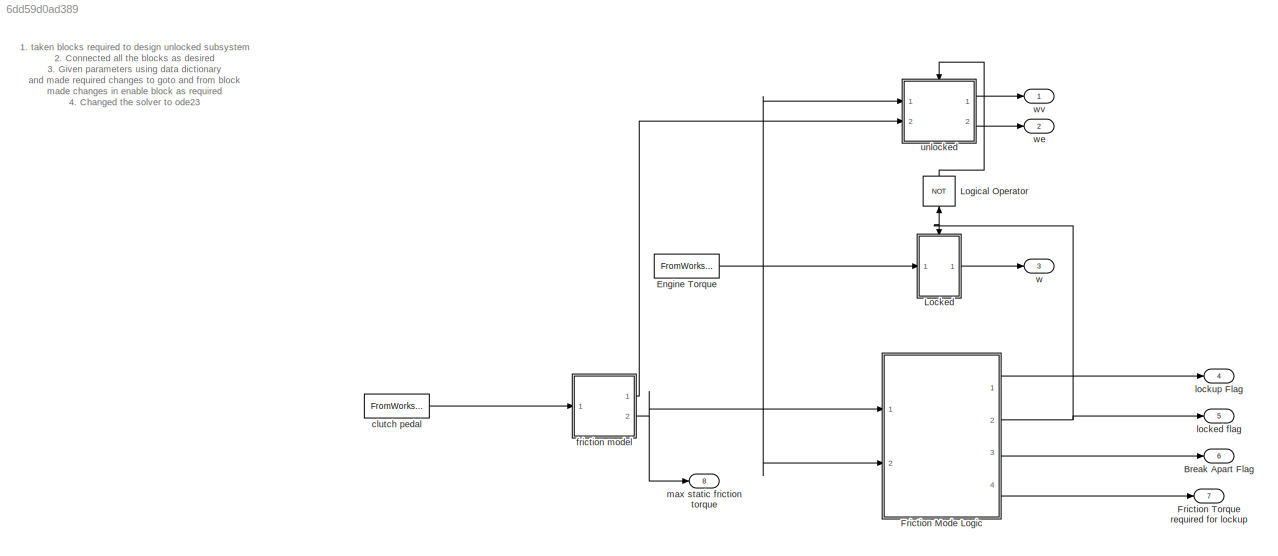
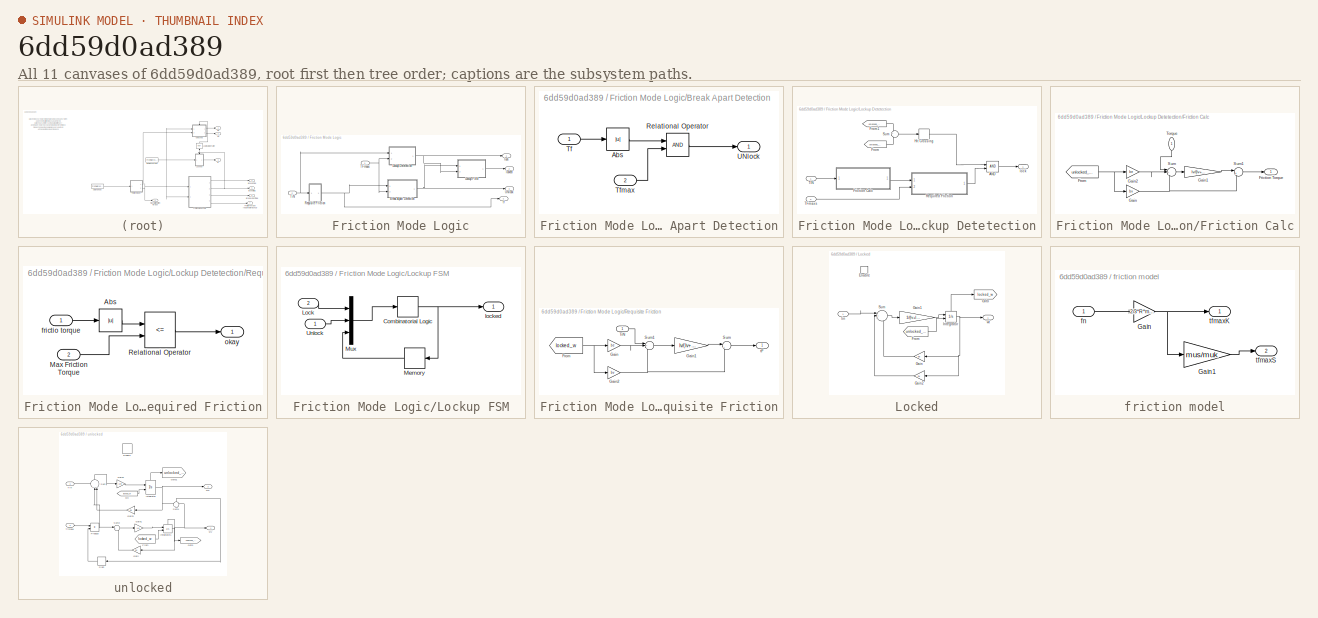
[diagram: thumbnail index - all 11 canvases of the model, root first then tree order]
MODEL slx_6dd59d0ad389
KIND model
CONFIG AbsTol = auto
CONFIG EnableMultiTasking = off
CONFIG FixedStep = auto
CONFIG MaxStep = auto
CONFIG MinStep = auto
CONFIG PostLoadFcn = Fn=[0 0;1 0.8;2 1.6;3 1.6;4 1.6;5 1.6;6 0.8;7 0;8 0;9 0;10 0];\nle=1;\nlv=5;\nR=1;\nbe=2;\nbv=1;\nmuk=1;\nmus=1.5;\nTin=[1 2;2 2;3 2;4 2;5 2;6 0;7 0;8 0;9 0;10 0];\nf1=[1;6;11;16;21;26;31;36;41;46;51];
CONFIG RelTol = 1e-3
CONFIG SampleTimeConstraint = Unconstrained
CONFIG Solver = ode23
CONFIG SolverName = ode23
CONFIG StartTime = 0.0
CONFIG StopTime = 10.0
BLOCK [Outport] Break Apart Flag
  Port = 6
BLOCK [FromWorkspace] Engine Torque
  VariableName = Tin
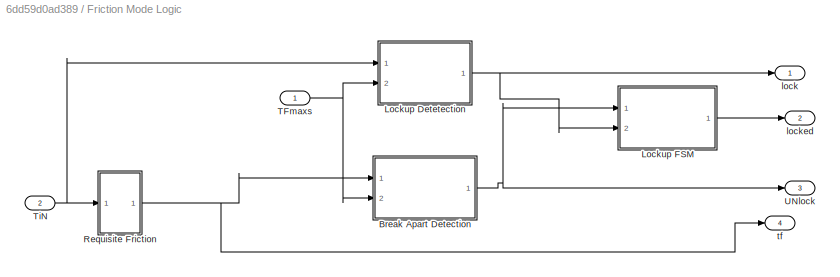
BLOCK [SubSystem] Friction Mode Logic
  Ports = [2, 4]
  RequestExecContextInheritance = off
BLOCK [SubSystem] Friction Mode Logic/Break Apart Detection
  Ports = [2, 1]
  RequestExecContextInheritance = off
BLOCK [Abs] Friction Mode Logic/Break Apart Detection/Abs
  SaturateOnIntegerOverflow = off
BLOCK [RelationalOperator] Friction Mode Logic/Break Apart Detection/Relational Operator
  InputSameDT = off
  OutDataTypeStr = boolean
  Ports = [2, 1]
  RndMeth = Simplest
BLOCK [Inport] Friction Mode Logic/Break Apart Detection/Tf
BLOCK [Inport] Friction Mode Logic/Break Apart Detection/Tfmax
  Port = 2
BLOCK [Outport] Friction Mode Logic/Break Apart Detection/UNlock
BLOCK [SubSystem] Friction Mode Logic/Lockup Detetection
  Ports = [2, 1]
  RequestExecContextInheritance = off
BLOCK [Logic] Friction Mode Logic/Lockup Detetection/AND
  AllPortsSameDT = off
  IconShape = distinctive
  OutDataTypeStr = boolean
  Ports = [2, 1]
BLOCK [SubSystem] Friction Mode Logic/Lockup Detetection/Friction Calc
  Ports = [1, 1]
  RequestExecContextInheritance = off
BLOCK [Outport] Friction Mode Logic/Lockup Detetection/Friction Calc/Friction Torque
BLOCK [From] Friction Mode Logic/Lockup Detetection/Friction Calc/From
  GotoTag = unlocked_we
  TagVisibility = global
BLOCK [Gain] Friction Mode Logic/Lockup Detetection/Friction Calc/Gain
  Gain = bv
BLOCK [Gain] Friction Mode Logic/Lockup Detetection/Friction Calc/Gain1
  Gain = lv/(lv+le)
BLOCK [Gain] Friction Mode Logic/Lockup Detetection/Friction Calc/Gain2
  Gain = be
BLOCK [Sum] Friction Mode Logic/Lockup Detetection/Friction Calc/Sum
  Inputs = |+--
  Ports = [3, 1]
BLOCK [Sum] Friction Mode Logic/Lockup Detetection/Friction Calc/Sum1
  Inputs = |++
  Ports = [2, 1]
BLOCK [Inport] Friction Mode Logic/Lockup Detetection/Friction Calc/Torque
  NameLocation = left
BLOCK [From] Friction Mode Logic/Lockup Detetection/From
  GotoTag = unlocked_wv
  TagVisibility = global
BLOCK [From] Friction Mode Logic/Lockup Detetection/From1
  GotoTag = unlocked_we
  TagVisibility = global
BLOCK [HitCross] Friction Mode Logic/Lockup Detetection/Hit Crossing
  Ports = [1, 1]
BLOCK [SubSystem] Friction Mode Logic/Lockup Detetection/Required Friction
  Ports = [2, 1]
  RequestExecContextInheritance = off
BLOCK [Abs] Friction Mode Logic/Lockup Detetection/Required Friction/Abs
  SaturateOnIntegerOverflow = off
BLOCK [Inport] Friction Mode Logic/Lockup Detetection/Required Friction/Max Friction Torque
  Port = 2
BLOCK [RelationalOperator] Friction Mode Logic/Lockup Detetection/Required Friction/Relational Operator
  InputSameDT = off
  Operator = <=
  OutDataTypeStr = boolean
  Ports = [2, 1]
  RndMeth = Simplest
BLOCK [Inport] Friction Mode Logic/Lockup Detetection/Required Friction/frictio torque
BLOCK [Outport] Friction Mode Logic/Lockup Detetection/Required Friction/okay
BLOCK [Sum] Friction Mode Logic/Lockup Detetection/Sum
  Inputs = +-
  Ports = [2, 1]
BLOCK [Inport] Friction Mode Logic/Lockup Detetection/TFmaxs
  Port = 2
BLOCK [Inport] Friction Mode Logic/Lockup Detetection/TIN
BLOCK [Outport] Friction Mode Logic/Lockup Detetection/lock
BLOCK [SubSystem] Friction Mode Logic/Lockup FSM
  Ports = [2, 1]
  RequestExecContextInheritance = off
BLOCK [CombinatorialLogic] Friction Mode Logic/Lockup FSM/Combinatorial Logic
  TruthTable = [0;1;0;0;1;1;1;0]
BLOCK [Inport] Friction Mode Logic/Lockup FSM/Lock
  Port = 2
BLOCK [Memory] Friction Mode Logic/Lockup FSM/Memory
  NameLocation = top
BLOCK [Mux] Friction Mode Logic/Lockup FSM/Mux
  DisplayOption = bar
  Inputs = 3
  Ports = [3, 1]
BLOCK [Inport] Friction Mode Logic/Lockup FSM/Unlock
BLOCK [Outport] Friction Mode Logic/Lockup FSM/locked
BLOCK [SubSystem] Friction Mode Logic/Requisite Friction
  Ports = [1, 1]
  RequestExecContextInheritance = off
BLOCK [From] Friction Mode Logic/Requisite Friction/From
  GotoTag = locked_w
  TagVisibility = global
BLOCK [Gain] Friction Mode Logic/Requisite Friction/Gain
  Gain = be
BLOCK [Gain] Friction Mode Logic/Requisite Friction/Gain1
  Gain = lv/(lv+le)
BLOCK [Gain] Friction Mode Logic/Requisite Friction/Gain2
  Gain = bv
BLOCK [Sum] Friction Mode Logic/Requisite Friction/Sum
  Inputs = |++
  Ports = [2, 1]
BLOCK [Sum] Friction Mode Logic/Requisite Friction/Sum1
  Inputs = |+--
  Ports = [3, 1]
BLOCK [Inport] Friction Mode Logic/Requisite Friction/TiN
BLOCK [Outport] Friction Mode Logic/Requisite Friction/tF
BLOCK [Inport] Friction Mode Logic/TFmaxs
BLOCK [Inport] Friction Mode Logic/TiN
  Port = 2
BLOCK [Outport] Friction Mode Logic/UNlock
  Port = 3
BLOCK [Outport] Friction Mode Logic/lock
BLOCK [Outport] Friction Mode Logic/locked
  Port = 2
BLOCK [Outport] Friction Mode Logic/tf
  Port = 4
BLOCK [Outport] Friction Torque required for lockup
  Port = 7
BLOCK [SubSystem] Locked
  Ports = [1, 1, 1]
  RequestExecContextInheritance = off
BLOCK [EnablePort] Locked/Enable
  Ports = []
  StatesWhenEnabling = reset
BLOCK [From] Locked/From
  GotoTag = unlocked_we
  TagVisibility = global
BLOCK [Gain] Locked/Gain
  Gain = be
  NameLocation = top
BLOCK [Gain] Locked/Gain1
  Gain = 1/(lv+le)
BLOCK [Gain] Locked/Gain2
  Gain = bv
  NameLocation = top
BLOCK [Goto] Locked/Goto
  GotoTag = locked_w
  TagVisibility = global
BLOCK [Integrator] Locked/Integrator
  InitialConditionSource = external
  Ports = [2, 1, 0, 0, 1]
  ShowStatePort = on
BLOCK [Sum] Locked/Sum
  Inputs = |+--
  Ports = [3, 1]
BLOCK [Inport] Locked/tin
BLOCK [Outport] Locked/wt
BLOCK [Logic] Logical Operator
  AllPortsSameDT = off
  NameLocation = right
  Operator = NOT
  OutDataTypeStr = boolean
  Ports = [1, 1]
BLOCK [FromWorkspace] clutch pedal
  VariableName = Fn
BLOCK [SubSystem] friction model
  Ports = [1, 2]
  RequestExecContextInheritance = off
BLOCK [Gain] friction model/Gain
  Gain = 2/3*R*muk
BLOCK [Gain] friction model/Gain1
  Gain = mus/muk
BLOCK [Inport] friction model/fn
BLOCK [Outport] friction model/tfmaxK
BLOCK [Outport] friction model/tfmaxS
  Port = 2
BLOCK [Outport] locked flag
  Port = 5
BLOCK [Outport] lockup Flag
  Port = 4
BLOCK [Outport] max static friction torque
  Port = 8
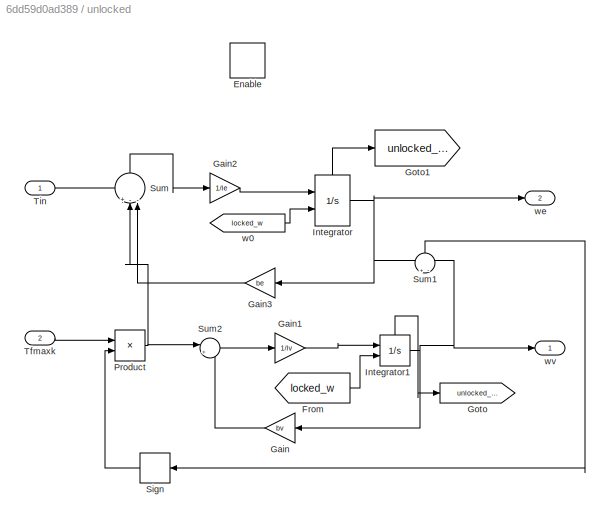
BLOCK [SubSystem] unlocked
  Ports = [2, 2, 1]
  RequestExecContextInheritance = off
BLOCK [EnablePort] unlocked/Enable
  Ports = []
  StatesWhenEnabling = reset
BLOCK [From] unlocked/From
  GotoTag = locked_w
  TagVisibility = global
BLOCK [Gain] unlocked/Gain
  Gain = bv
  NameLocation = top
BLOCK [Gain] unlocked/Gain1
  Gain = 1/lv
BLOCK [Gain] unlocked/Gain2
  Gain = 1/le
BLOCK [Gain] unlocked/Gain3
  Gain = be
  NameLocation = top
BLOCK [Goto] unlocked/Goto
  GotoTag = unlocked_wv
  TagVisibility = global
BLOCK [Goto] unlocked/Goto1
  GotoTag = unlocked_we
  TagVisibility = global
BLOCK [Integrator] unlocked/Integrator
  InitialConditionSource = external
  Ports = [2, 1, 0, 0, 1]
  ShowStatePort = on
BLOCK [Integrator] unlocked/Integrator1
  InitialConditionSource = external
  Ports = [2, 1, 0, 0, 1]
  ShowStatePort = on
BLOCK [Product] unlocked/Product
  Ports = [2, 1]
BLOCK [Signum] unlocked/Sign
  NameLocation = top
BLOCK [Sum] unlocked/Sum
  Inputs = +--
  NameLocation = right
  Ports = [3, 1]
BLOCK [Sum] unlocked/Sum1
  Inputs = +-
  NameLocation = right
  Ports = [2, 1]
BLOCK [Sum] unlocked/Sum2
  Inputs = |+-
  Ports = [2, 1]
BLOCK [Inport] unlocked/Tfmaxk
  Port = 2
BLOCK [Inport] unlocked/Tin
BLOCK [From] unlocked/w0
  GotoTag = locked_w
  TagVisibility = global
BLOCK [Outport] unlocked/we
  Port = 2
BLOCK [Outport] unlocked/wv
BLOCK [Outport] w
  Port = 3
BLOCK [Outport] we
  Port = 2
BLOCK [Outport] wv
ANNOTATION (root): 1. taken blocks required to design unlocked subsystem 2. Connected all the blocks as desired 3. Given parameters using data dictionary and made required changes to goto and from block made changes in enable block as required 4. Changed the solver to ode23 5. Selected all the blocks and converted to unlocked subsystem 6. Taken all the blocks required to design Locked subsytem 7. Connected all the b...<+640ch>
NET Engine Torque:1 -> Friction Mode Logic:2, Locked:1, unlocked:1
LINE Friction Mode Logic/Break Apart Detection/Abs:1 -> Friction Mode Logic/Break Apart Detection/Relational Operator:1
LINE Friction Mode Logic/Break Apart Detection/Relational Operator:1 -> Friction Mode Logic/Break Apart Detection/UNlock:1
LINE Friction Mode Logic/Break Apart Detection/Tf:1 -> Friction Mode Logic/Break Apart Detection/Abs:1
LINE Friction Mode Logic/Break Apart Detection/Tfmax:1 -> Friction Mode Logic/Break Apart Detection/Relational Operator:2
NET Friction Mode Logic/Break Apart Detection:1 -> Friction Mode Logic/Lockup FSM:1, Friction Mode Logic/UNlock:1
LINE Friction Mode Logic/Lockup Detetection/AND:1 -> Friction Mode Logic/Lockup Detetection/lock:1
NET Friction Mode Logic/Lockup Detetection/Friction Calc/From:1 -> Friction Mode Logic/Lockup Detetection/Friction Calc/Gain2:1, Friction Mode Logic/Lockup Detetection/Friction Calc/Gain:1
LINE Friction Mode Logic/Lockup Detetection/Friction Calc/Gain1:1 -> Friction Mode Logic/Lockup Detetection/Friction Calc/Sum1:1
LINE Friction Mode Logic/Lockup Detetection/Friction Calc/Gain2:1 -> Friction Mode Logic/Lockup Detetection/Friction Calc/Sum:2
NET Friction Mode Logic/Lockup Detetection/Friction Calc/Gain:1 -> Friction Mode Logic/Lockup Detetection/Friction Calc/Sum1:2, Friction Mode Logic/Lockup Detetection/Friction Calc/Sum:3
LINE Friction Mode Logic/Lockup Detetection/Friction Calc/Sum1:1 -> Friction Mode Logic/Lockup Detetection/Friction Calc/Friction Torque:1
LINE Friction Mode Logic/Lockup Detetection/Friction Calc/Sum:1 -> Friction Mode Logic/Lockup Detetection/Friction Calc/Gain1:1
LINE Friction Mode Logic/Lockup Detetection/Friction Calc/Torque:1 -> Friction Mode Logic/Lockup Detetection/Friction Calc/Sum:1
LINE Friction Mode Logic/Lockup Detetection/Friction Calc:1 -> Friction Mode Logic/Lockup Detetection/Required Friction:1
LINE Friction Mode Logic/Lockup Detetection/From1:1 -> Friction Mode Logic/Lockup Detetection/Sum:1
LINE Friction Mode Logic/Lockup Detetection/From:1 -> Friction Mode Logic/Lockup Detetection/Sum:2
LINE Friction Mode Logic/Lockup Detetection/Hit Crossing:1 -> Friction Mode Logic/Lockup Detetection/AND:1
LINE Friction Mode Logic/Lockup Detetection/Required Friction/Abs:1 -> Friction Mode Logic/Lockup Detetection/Required Friction/Relational Operator:1
LINE Friction Mode Logic/Lockup Detetection/Required Friction/Max Friction Torque:1 -> Friction Mode Logic/Lockup Detetection/Required Friction/Relational Operator:2
LINE Friction Mode Logic/Lockup Detetection/Required Friction/Relational Operator:1 -> Friction Mode Logic/Lockup Detetection/Required Friction/okay:1
LINE Friction Mode Logic/Lockup Detetection/Required Friction/frictio torque:1 -> Friction Mode Logic/Lockup Detetection/Required Friction/Abs:1
LINE Friction Mode Logic/Lockup Detetection/Required Friction:1 -> Friction Mode Logic/Lockup Detetection/AND:2
LINE Friction Mode Logic/Lockup Detetection/Sum:1 -> Friction Mode Logic/Lockup Detetection/Hit Crossing:1
LINE Friction Mode Logic/Lockup Detetection/TFmaxs:1 -> Friction Mode Logic/Lockup Detetection/Required Friction:2
LINE Friction Mode Logic/Lockup Detetection/TIN:1 -> Friction Mode Logic/Lockup Detetection/Friction Calc:1
NET Friction Mode Logic/Lockup Detetection:1 -> Friction Mode Logic/Lockup FSM:2, Friction Mode Logic/lock:1
NET Friction Mode Logic/Lockup FSM/Combinatorial Logic:1 -> Friction Mode Logic/Lockup FSM/Memory:1, Friction Mode Logic/Lockup FSM/locked:1
LINE Friction Mode Logic/Lockup FSM/Lock:1 -> Friction Mode Logic/Lockup FSM/Mux:1
LINE Friction Mode Logic/Lockup FSM/Memory:1 -> Friction Mode Logic/Lockup FSM/Mux:3
LINE Friction Mode Logic/Lockup FSM/Mux:1 -> Friction Mode Logic/Lockup FSM/Combinatorial Logic:1
LINE Friction Mode Logic/Lockup FSM/Unlock:1 -> Friction Mode Logic/Lockup FSM/Mux:2
LINE Friction Mode Logic/Lockup FSM:1 -> Friction Mode Logic/locked:1
NET Friction Mode Logic/Requisite Friction/From:1 -> Friction Mode Logic/Requisite Friction/Gain2:1, Friction Mode Logic/Requisite Friction/Gain:1
LINE Friction Mode Logic/Requisite Friction/Gain1:1 -> Friction Mode Logic/Requisite Friction/Sum:1
NET Friction Mode Logic/Requisite Friction/Gain2:1 -> Friction Mode Logic/Requisite Friction/Sum1:3, Friction Mode Logic/Requisite Friction/Sum:2
LINE Friction Mode Logic/Requisite Friction/Gain:1 -> Friction Mode Logic/Requisite Friction/Sum1:2
LINE Friction Mode Logic/Requisite Friction/Sum1:1 -> Friction Mode Logic/Requisite Friction/Gain1:1
LINE Friction Mode Logic/Requisite Friction/Sum:1 -> Friction Mode Logic/Requisite Friction/tF:1
LINE Friction Mode Logic/Requisite Friction/TiN:1 -> Friction Mode Logic/Requisite Friction/Sum1:1
NET Friction Mode Logic/Requisite Friction:1 -> Friction Mode Logic/Break Apart Detection:1, Friction Mode Logic/tf:1
NET Friction Mode Logic/TFmaxs:1 -> Friction Mode Logic/Break Apart Detection:2, Friction Mode Logic/Lockup Detetection:2
NET Friction Mode Logic/TiN:1 -> Friction Mode Logic/Lockup Detetection:1, Friction Mode Logic/Requisite Friction:1
LINE Friction Mode Logic:1 -> lockup Flag:1
NET Friction Mode Logic:2 -> Locked:enable, Logical Operator:1, locked flag:1
LINE Friction Mode Logic:3 -> Break Apart Flag:1
LINE Friction Mode Logic:4 -> Friction Torque required for lockup:1
LINE Locked/From:1 -> Locked/Integrator:2
LINE Locked/Gain1:1 -> Locked/Integrator:1
LINE Locked/Gain2:1 -> Locked/Sum:2
LINE Locked/Gain:1 -> Locked/Sum:3
NET Locked/Integrator:1 -> Locked/Gain2:1, Locked/Gain:1, Locked/wt:1
LINE Locked/Integrator:state -> Locked/Goto:1
LINE Locked/Sum:1 -> Locked/Gain1:1
LINE Locked/tin:1 -> Locked/Sum:1
LINE Locked:1 -> w:1
LINE Logical Operator:1 -> unlocked:enable
LINE clutch pedal:1 -> friction model:1
LINE friction model/Gain1:1 -> friction model/tfmaxS:1
NET friction model/Gain:1 -> friction model/Gain1:1, friction model/tfmaxK:1
LINE friction model/fn:1 -> friction model/Gain:1
LINE friction model:1 -> unlocked:2
NET friction model:2 -> Friction Mode Logic:1, max static friction torque:1
LINE unlocked/From:1 -> unlocked/Integrator1:2
LINE unlocked/Gain1:1 -> unlocked/Integrator1:1
LINE unlocked/Gain2:1 -> unlocked/Integrator:1
LINE unlocked/Gain3:1 -> unlocked/Sum:3
LINE unlocked/Gain:1 -> unlocked/Sum2:2
NET unlocked/Integrator1:1 -> unlocked/Gain:1, unlocked/Sum1:2, unlocked/wv:1
LINE unlocked/Integrator1:state -> unlocked/Goto:1
NET unlocked/Integrator:1 -> unlocked/Gain3:1, unlocked/Sum1:1, unlocked/we:1
LINE unlocked/Integrator:state -> unlocked/Goto1:1
NET unlocked/Product:1 -> unlocked/Sum2:1, unlocked/Sum:2
LINE unlocked/Sign:1 -> unlocked/Product:2
LINE unlocked/Sum1:1 -> unlocked/Sign:1
LINE unlocked/Sum2:1 -> unlocked/Gain1:1
LINE unlocked/Sum:1 -> unlocked/Gain2:1
LINE unlocked/Tfmaxk:1 -> unlocked/Product:1
LINE unlocked/Tin:1 -> unlocked/Sum:1
LINE unlocked/w0:1 -> unlocked/Integrator:2
LINE unlocked:1 -> wv:1
LINE unlocked:2 -> we:1
note: NET lines group one-source signal fan-out (src -> all destinations, sorted); 1:1 wires keep LINE
